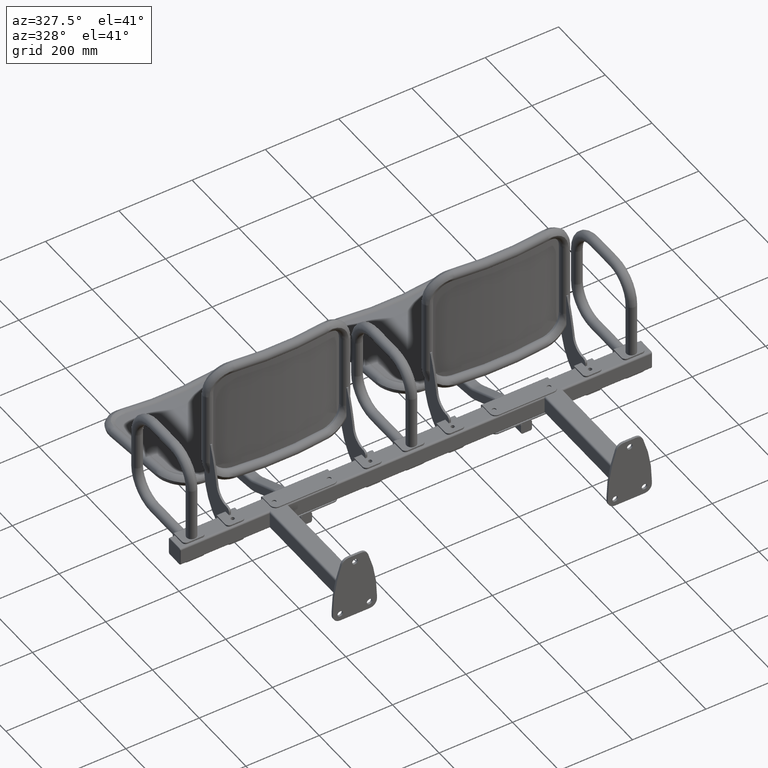
[diagram: clean part render]
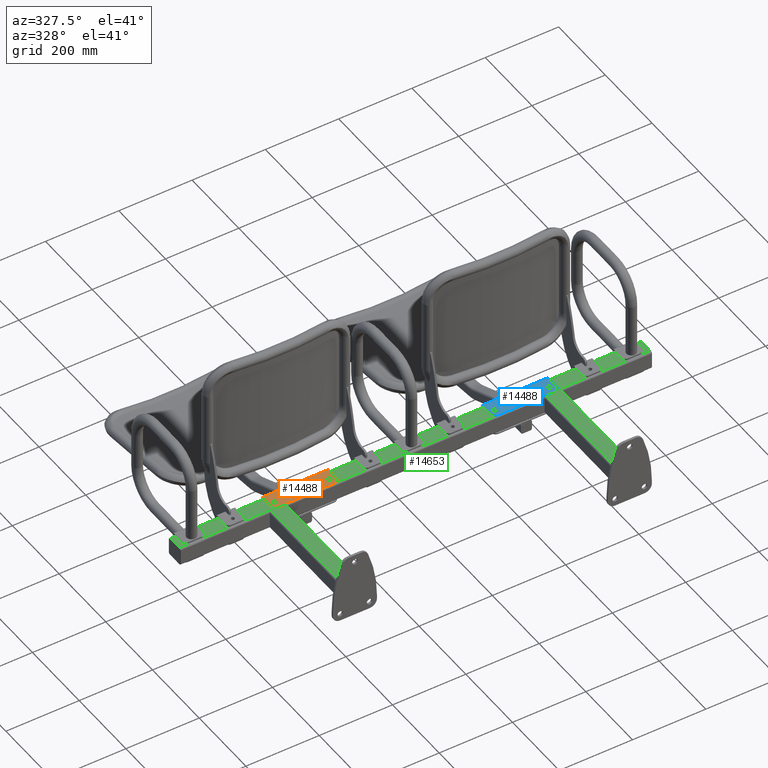
[diagram: same view with three faces highlighted in distinct colors, each labeled with its STEP entity id]
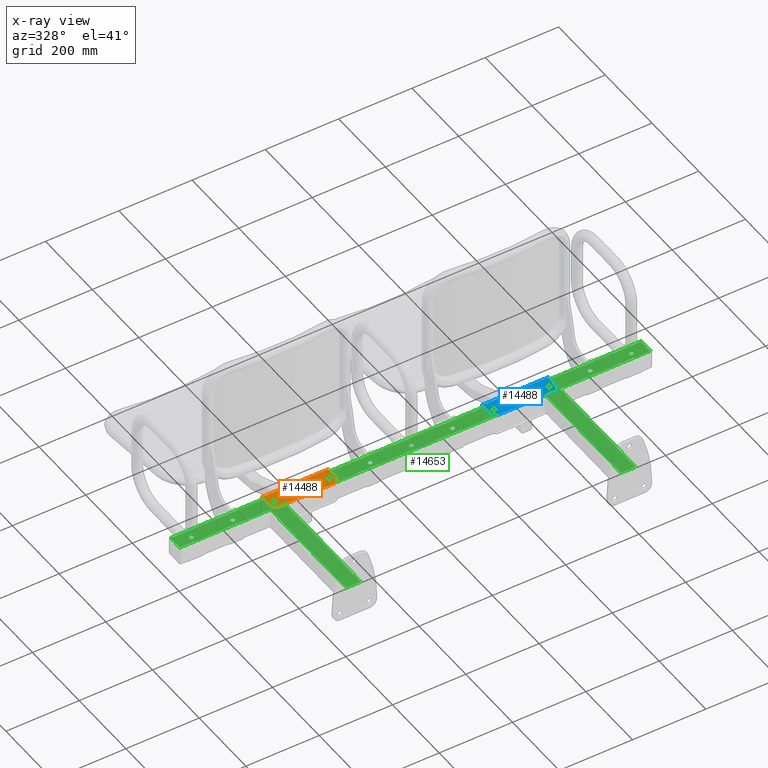
[diagram: x-ray of the same camera — body ghosted, the three highlighted faces saturated]
A machine part, auxiliary view with three faces highlighted in distinct colors.
The next image is the same camera in x-ray (body ghosted, the three faces saturated) — at least one of them is partly hidden behind the body in this view.
Their STEP definitions:

[orange] entity #14488 — the highlighted planar face has unit normal (0, 0, -1).
#105 = AXIS2_PLACEMENT_3D ( 'NONE', #3403, #3399, #3405 ) ;
#319 = CARTESIAN_POINT ( 'NONE',  ( -74.99999999999997200, 45.12622973921212800, 413.6225311186879000 ) ) ;
#1972 = ORIENTED_EDGE ( 'NONE', *, *, #16790, .T. ) ;
#1973 = ORIENTED_EDGE ( 'NONE', *, *, #16789, .F. ) ;
#1974 = ORIENTED_EDGE ( 'NONE', *, *, #16788, .T. ) ;
#1975 = ORIENTED_EDGE ( 'NONE', *, *, #16787, .F. ) ;
#1976 = ORIENTED_EDGE ( 'NONE', *, *, #16786, .T. ) ;
#1977 = ORIENTED_EDGE ( 'NONE', *, *, #16785, .T. ) ;
#1978 = ORIENTED_EDGE ( 'NONE', *, *, #16749, .F. ) ;
#1979 = ORIENTED_EDGE ( 'NONE', *, *, #16784, .F. ) ;
#1980 = ORIENTED_EDGE ( 'NONE', *, *, #16741, .F. ) ;
#1981 = ORIENTED_EDGE ( 'NONE', *, *, #16783, .F. ) ;
#2167 = VERTEX_POINT ( 'NONE', #319 ) ;
#2178 = VERTEX_POINT ( 'NONE', #8887 ) ;
#2180 = VERTEX_POINT ( 'NONE', #8889 ) ;
#2188 = VERTEX_POINT ( 'NONE', #8897 ) ;
#2269 = VERTEX_POINT ( 'NONE', #12580 ) ;
#2271 = VERTEX_POINT ( 'NONE', #12582 ) ;
#2289 = VERTEX_POINT ( 'NONE', #12600 ) ;
#3106 = AXIS2_PLACEMENT_3D ( 'NONE', #17663, #17664, #17665 ) ;
#3107 = AXIS2_PLACEMENT_3D ( 'NONE', #17667, #17668, #17669 ) ;
#3108 = AXIS2_PLACEMENT_3D ( 'NONE', #17672, #17673, #17674 ) ;
#3109 = AXIS2_PLACEMENT_3D ( 'NONE', #17677, #17678, #17679 ) ;
#3399 = DIRECTION ( 'NONE',  ( 0.0000000000000000000, -0.9925461516413218700, -0.1218693434051486100 ) ) ;
#3403 = CARTESIAN_POINT ( 'NONE',  ( 90.00000000000000000, 47.86828996582794800, 391.2902427067581900 ) ) ;
#3404 = PLANE ( 'NONE',  #105 ) ;
#3405 = DIRECTION ( 'NONE',  ( 0.0000000000000000000, 0.1218693434051486100, -0.9925461516413218700 ) ) ;
#8257 = CIRCLE ( 'NONE', #9464, 5.500000000000039100 ) ;
#8272 = CIRCLE ( 'NONE', #9470, 5.500000000000039100 ) ;
#8324 = CIRCLE ( 'NONE', #3108, 15.00000000000002000 ) ;
#8327 = CIRCLE ( 'NONE', #3106, 5.500000000000039100 ) ;
#8329 = CIRCLE ( 'NONE', #3107, 5.500000000000039100 ) ;
#8330 = LINE ( 'NONE', #17661, #8332 ) ;
#8331 = CIRCLE ( 'NONE', #3109, 15.00000000000002000 ) ;
#8332 = VECTOR ( 'NONE', #17662, 1000.000000000000100 ) ;
#8333 = LINE ( 'NONE', #17670, #8335 ) ;
#8335 = VECTOR ( 'NONE', #17666, 1000.000000000000000 ) ;
#8336 = LINE ( 'NONE', #17675, #8338 ) ;
#8337 = LINE ( 'NONE', #17680, #8340 ) ;
#8338 = VECTOR ( 'NONE', #17671, 1000.000000000000100 ) ;
#8340 = VECTOR ( 'NONE', #17681, 1000.000000000000000 ) ;
#8887 = CARTESIAN_POINT ( 'NONE',  ( 75.00000000000008500, 45.12622973921212100, 413.6225311186879600 ) ) ;
#8889 = CARTESIAN_POINT ( 'NONE',  ( -74.99999999999997200, 43.78566696175548100, 424.5405387867425000 ) ) ;
#8897 = CARTESIAN_POINT ( 'NONE',  ( 75.00000000000008500, 43.78566696175547400, 424.5405387867425600 ) ) ;
#9464 = AXIS2_PLACEMENT_3D ( 'NONE', #17562, #17563, #17564 ) ;
#9470 = AXIS2_PLACEMENT_3D ( 'NONE', #17582, #17583, #17584 ) ;
#10379 = VERTEX_POINT ( 'NONE', #12832 ) ;
#10388 = VERTEX_POINT ( 'NONE', #12841 ) ;
#10400 = VERTEX_POINT ( 'NONE', #12853 ) ;
#12480 = EDGE_LOOP ( 'NONE', ( #1977, #1976, #1975, #1974, #1973, #1972 ) ) ;
#12543 = EDGE_LOOP ( 'NONE', ( #1979, #1978 ) ) ;
#12552 = EDGE_LOOP ( 'NONE', ( #1981, #1980 ) ) ;
#12580 = CARTESIAN_POINT ( 'NONE',  ( 90.00000000000000000, 43.72473229005289900, 425.0368118625630700 ) ) ;
#12582 = CARTESIAN_POINT ( 'NONE',  ( 75.00000000000000000, 41.89669213897568100, 439.9250041371829000 ) ) ;
#12600 = CARTESIAN_POINT ( 'NONE',  ( -74.99999999999992900, 41.89669213897568100, 439.9250041371829000 ) ) ;
#12832 = CARTESIAN_POINT ( 'NONE',  ( -90.00000000000000000, 43.72473229005289900, 425.0368118625630700 ) ) ;
#12841 = CARTESIAN_POINT ( 'NONE',  ( 90.00000000000000000, 47.86828996582792700, 391.2902427067581900 ) ) ;
#12853 = CARTESIAN_POINT ( 'NONE',  ( -90.00000000000000000, 47.86828996582792700, 391.2902427067581900 ) ) ;
#13769 = FACE_OUTER_BOUND ( 'NONE', #12480, .T. ) ;
#13779 = FACE_BOUND ( 'NONE', #12552, .T. ) ;
#13781 = FACE_BOUND ( 'NONE', #12543, .T. ) ;
#14488 = ADVANCED_FACE ( 'NONE', ( #13779, #13781, #13769 ), #3404, .F. ) ;
#16741 = EDGE_CURVE ( 'NONE', #2178, #2188, #8257, .T. ) ;
#16749 = EDGE_CURVE ( 'NONE', #2167, #2180, #8272, .T. ) ;
#16783 = EDGE_CURVE ( 'NONE', #2188, #2178, #8327, .T. ) ;
#16784 = EDGE_CURVE ( 'NONE', #2180, #2167, #8329, .T. ) ;
#16785 = EDGE_CURVE ( 'NONE', #10400, #10379, #8330, .T. ) ;
#16786 = EDGE_CURVE ( 'NONE', #10379, #2289, #8324, .T. ) ;
#16787 = EDGE_CURVE ( 'NONE', #2271, #2289, #8333, .T. ) ;
#16788 = EDGE_CURVE ( 'NONE', #2271, #2269, #8331, .T. ) ;
#16789 = EDGE_CURVE ( 'NONE', #10388, #2269, #8336, .T. ) ;
#16790 = EDGE_CURVE ( 'NONE', #10388, #10400, #8337, .T. ) ;
#17562 = CARTESIAN_POINT ( 'NONE',  ( 75.00000000000008500, 44.45594835048379400, 419.0815349527152900 ) ) ;
#17563 = DIRECTION ( 'NONE',  ( -0.0000000000000000000, 0.9925461516413219800, 0.1218693434051486100 ) ) ;
#17564 = DIRECTION ( 'NONE',  ( 0.0000000000000000000, 0.1218693434051486100, -0.9925461516413219800 ) ) ;
#17582 = CARTESIAN_POINT ( 'NONE',  ( -74.99999999999997200, 44.45594835048380100, 419.0815349527152300 ) ) ;
#17583 = DIRECTION ( 'NONE',  ( 0.0000000000000000000, 0.9925461516413219800, 0.1218693434051486100 ) ) ;
#17584 = DIRECTION ( 'NONE',  ( 0.0000000000000000000, -0.1218693434051486100, 0.9925461516413219800 ) ) ;
#17661 = CARTESIAN_POINT ( 'NONE',  ( -90.00000000000000000, 47.86828996582794800, 391.2902427067581900 ) ) ;
#17662 = DIRECTION ( 'NONE',  ( 0.0000000000000000000, -0.1218693434051486100, 0.9925461516413218700 ) ) ;
#17663 = CARTESIAN_POINT ( 'NONE',  ( 75.00000000000008500, 44.45594835048379400, 419.0815349527152900 ) ) ;
#17664 = DIRECTION ( 'NONE',  ( -0.0000000000000000000, 0.9925461516413219800, 0.1218693434051486100 ) ) ;
#17665 = DIRECTION ( 'NONE',  ( 0.0000000000000000000, 0.1218693434051486100, -0.9925461516413219800 ) ) ;
#17666 = DIRECTION ( 'NONE',  ( -1.000000000000000000, -0.0000000000000000000, -0.0000000000000000000 ) ) ;
#17667 = CARTESIAN_POINT ( 'NONE',  ( -74.99999999999997200, 44.45594835048380100, 419.0815349527152300 ) ) ;
#17668 = DIRECTION ( 'NONE',  ( 0.0000000000000000000, 0.9925461516413219800, 0.1218693434051486100 ) ) ;
#17669 = DIRECTION ( 'NONE',  ( 0.0000000000000000000, -0.1218693434051486100, 0.9925461516413219800 ) ) ;
#17670 = CARTESIAN_POINT ( 'NONE',  ( 90.00000000000000000, 41.89669213897568100, 439.9250041371829000 ) ) ;
#17671 = DIRECTION ( 'NONE',  ( 0.0000000000000000000, -0.1218693434051486100, 0.9925461516413218700 ) ) ;
#17672 = CARTESIAN_POINT ( 'NONE',  ( -75.00000000000000000, 43.72473229005289900, 425.0368118625630700 ) ) ;
#17673 = DIRECTION ( 'NONE',  ( -0.0000000000000000000, 0.9925461516413218700, 0.1218693434051486100 ) ) ;
#17674 = DIRECTION ( 'NONE',  ( 0.0000000000000000000, 0.1218693434051485200, -0.9925461516413219800 ) ) ;
#17675 = CARTESIAN_POINT ( 'NONE',  ( 90.00000000000000000, 47.86828996582794800, 391.2902427067581900 ) ) ;
#17677 = CARTESIAN_POINT ( 'NONE',  ( 75.00000000000000000, 43.72473229005289900, 425.0368118625630700 ) ) ;
#17678 = DIRECTION ( 'NONE',  ( -0.0000000000000000000, 0.9925461516413218700, 0.1218693434051486100 ) ) ;
#17679 = DIRECTION ( 'NONE',  ( 0.0000000000000000000, 0.1218693434051485200, -0.9925461516413219800 ) ) ;
#17680 = CARTESIAN_POINT ( 'NONE',  ( 90.00000000000000000, 47.86828996582792700, 391.2902427067581900 ) ) ;
#17681 = DIRECTION ( 'NONE',  ( -1.000000000000000000, -0.0000000000000000000, -0.0000000000000000000 ) ) ;

[blue] entity #14488 — the highlighted planar face has unit normal (0, 0, -1).
#105 = AXIS2_PLACEMENT_3D ( 'NONE', #3403, #3399, #3405 ) ;
#319 = CARTESIAN_POINT ( 'NONE',  ( -74.99999999999997200, 45.12622973921212800, 413.6225311186879000 ) ) ;
#1972 = ORIENTED_EDGE ( 'NONE', *, *, #16790, .T. ) ;
#1973 = ORIENTED_EDGE ( 'NONE', *, *, #16789, .F. ) ;
#1974 = ORIENTED_EDGE ( 'NONE', *, *, #16788, .T. ) ;
#1975 = ORIENTED_EDGE ( 'NONE', *, *, #16787, .F. ) ;
#1976 = ORIENTED_EDGE ( 'NONE', *, *, #16786, .T. ) ;
#1977 = ORIENTED_EDGE ( 'NONE', *, *, #16785, .T. ) ;
#1978 = ORIENTED_EDGE ( 'NONE', *, *, #16749, .F. ) ;
#1979 = ORIENTED_EDGE ( 'NONE', *, *, #16784, .F. ) ;
#1980 = ORIENTED_EDGE ( 'NONE', *, *, #16741, .F. ) ;
#1981 = ORIENTED_EDGE ( 'NONE', *, *, #16783, .F. ) ;
#2167 = VERTEX_POINT ( 'NONE', #319 ) ;
#2178 = VERTEX_POINT ( 'NONE', #8887 ) ;
#2180 = VERTEX_POINT ( 'NONE', #8889 ) ;
#2188 = VERTEX_POINT ( 'NONE', #8897 ) ;
#2269 = VERTEX_POINT ( 'NONE', #12580 ) ;
#2271 = VERTEX_POINT ( 'NONE', #12582 ) ;
#2289 = VERTEX_POINT ( 'NONE', #12600 ) ;
#3106 = AXIS2_PLACEMENT_3D ( 'NONE', #17663, #17664, #17665 ) ;
#3107 = AXIS2_PLACEMENT_3D ( 'NONE', #17667, #17668, #17669 ) ;
#3108 = AXIS2_PLACEMENT_3D ( 'NONE', #17672, #17673, #17674 ) ;
#3109 = AXIS2_PLACEMENT_3D ( 'NONE', #17677, #17678, #17679 ) ;
#3399 = DIRECTION ( 'NONE',  ( 0.0000000000000000000, -0.9925461516413218700, -0.1218693434051486100 ) ) ;
#3403 = CARTESIAN_POINT ( 'NONE',  ( 90.00000000000000000, 47.86828996582794800, 391.2902427067581900 ) ) ;
#3404 = PLANE ( 'NONE',  #105 ) ;
#3405 = DIRECTION ( 'NONE',  ( 0.0000000000000000000, 0.1218693434051486100, -0.9925461516413218700 ) ) ;
#8257 = CIRCLE ( 'NONE', #9464, 5.500000000000039100 ) ;
#8272 = CIRCLE ( 'NONE', #9470, 5.500000000000039100 ) ;
#8324 = CIRCLE ( 'NONE', #3108, 15.00000000000002000 ) ;
#8327 = CIRCLE ( 'NONE', #3106, 5.500000000000039100 ) ;
#8329 = CIRCLE ( 'NONE', #3107, 5.500000000000039100 ) ;
#8330 = LINE ( 'NONE', #17661, #8332 ) ;
#8331 = CIRCLE ( 'NONE', #3109, 15.00000000000002000 ) ;
#8332 = VECTOR ( 'NONE', #17662, 1000.000000000000100 ) ;
#8333 = LINE ( 'NONE', #17670, #8335 ) ;
#8335 = VECTOR ( 'NONE', #17666, 1000.000000000000000 ) ;
#8336 = LINE ( 'NONE', #17675, #8338 ) ;
#8337 = LINE ( 'NONE', #17680, #8340 ) ;
#8338 = VECTOR ( 'NONE', #17671, 1000.000000000000100 ) ;
#8340 = VECTOR ( 'NONE', #17681, 1000.000000000000000 ) ;
#8887 = CARTESIAN_POINT ( 'NONE',  ( 75.00000000000008500, 45.12622973921212100, 413.6225311186879600 ) ) ;
#8889 = CARTESIAN_POINT ( 'NONE',  ( -74.99999999999997200, 43.78566696175548100, 424.5405387867425000 ) ) ;
#8897 = CARTESIAN_POINT ( 'NONE',  ( 75.00000000000008500, 43.78566696175547400, 424.5405387867425600 ) ) ;
#9464 = AXIS2_PLACEMENT_3D ( 'NONE', #17562, #17563, #17564 ) ;
#9470 = AXIS2_PLACEMENT_3D ( 'NONE', #17582, #17583, #17584 ) ;
#10379 = VERTEX_POINT ( 'NONE', #12832 ) ;
#10388 = VERTEX_POINT ( 'NONE', #12841 ) ;
#10400 = VERTEX_POINT ( 'NONE', #12853 ) ;
#12480 = EDGE_LOOP ( 'NONE', ( #1977, #1976, #1975, #1974, #1973, #1972 ) ) ;
#12543 = EDGE_LOOP ( 'NONE', ( #1979, #1978 ) ) ;
#12552 = EDGE_LOOP ( 'NONE', ( #1981, #1980 ) ) ;
#12580 = CARTESIAN_POINT ( 'NONE',  ( 90.00000000000000000, 43.72473229005289900, 425.0368118625630700 ) ) ;
#12582 = CARTESIAN_POINT ( 'NONE',  ( 75.00000000000000000, 41.89669213897568100, 439.9250041371829000 ) ) ;
#12600 = CARTESIAN_POINT ( 'NONE',  ( -74.99999999999992900, 41.89669213897568100, 439.9250041371829000 ) ) ;
#12832 = CARTESIAN_POINT ( 'NONE',  ( -90.00000000000000000, 43.72473229005289900, 425.0368118625630700 ) ) ;
#12841 = CARTESIAN_POINT ( 'NONE',  ( 90.00000000000000000, 47.86828996582792700, 391.2902427067581900 ) ) ;
#12853 = CARTESIAN_POINT ( 'NONE',  ( -90.00000000000000000, 47.86828996582792700, 391.2902427067581900 ) ) ;
#13769 = FACE_OUTER_BOUND ( 'NONE', #12480, .T. ) ;
#13779 = FACE_BOUND ( 'NONE', #12552, .T. ) ;
#13781 = FACE_BOUND ( 'NONE', #12543, .T. ) ;
#14488 = ADVANCED_FACE ( 'NONE', ( #13779, #13781, #13769 ), #3404, .F. ) ;
#16741 = EDGE_CURVE ( 'NONE', #2178, #2188, #8257, .T. ) ;
#16749 = EDGE_CURVE ( 'NONE', #2167, #2180, #8272, .T. ) ;
#16783 = EDGE_CURVE ( 'NONE', #2188, #2178, #8327, .T. ) ;
#16784 = EDGE_CURVE ( 'NONE', #2180, #2167, #8329, .T. ) ;
#16785 = EDGE_CURVE ( 'NONE', #10400, #10379, #8330, .T. ) ;
#16786 = EDGE_CURVE ( 'NONE', #10379, #2289, #8324, .T. ) ;
#16787 = EDGE_CURVE ( 'NONE', #2271, #2289, #8333, .T. ) ;
#16788 = EDGE_CURVE ( 'NONE', #2271, #2269, #8331, .T. ) ;
#16789 = EDGE_CURVE ( 'NONE', #10388, #2269, #8336, .T. ) ;
#16790 = EDGE_CURVE ( 'NONE', #10388, #10400, #8337, .T. ) ;
#17562 = CARTESIAN_POINT ( 'NONE',  ( 75.00000000000008500, 44.45594835048379400, 419.0815349527152900 ) ) ;
#17563 = DIRECTION ( 'NONE',  ( -0.0000000000000000000, 0.9925461516413219800, 0.1218693434051486100 ) ) ;
#17564 = DIRECTION ( 'NONE',  ( 0.0000000000000000000, 0.1218693434051486100, -0.9925461516413219800 ) ) ;
#17582 = CARTESIAN_POINT ( 'NONE',  ( -74.99999999999997200, 44.45594835048380100, 419.0815349527152300 ) ) ;
#17583 = DIRECTION ( 'NONE',  ( 0.0000000000000000000, 0.9925461516413219800, 0.1218693434051486100 ) ) ;
#17584 = DIRECTION ( 'NONE',  ( 0.0000000000000000000, -0.1218693434051486100, 0.9925461516413219800 ) ) ;
#17661 = CARTESIAN_POINT ( 'NONE',  ( -90.00000000000000000, 47.86828996582794800, 391.2902427067581900 ) ) ;
#17662 = DIRECTION ( 'NONE',  ( 0.0000000000000000000, -0.1218693434051486100, 0.9925461516413218700 ) ) ;
#17663 = CARTESIAN_POINT ( 'NONE',  ( 75.00000000000008500, 44.45594835048379400, 419.0815349527152900 ) ) ;
#17664 = DIRECTION ( 'NONE',  ( -0.0000000000000000000, 0.9925461516413219800, 0.1218693434051486100 ) ) ;
#17665 = DIRECTION ( 'NONE',  ( 0.0000000000000000000, 0.1218693434051486100, -0.9925461516413219800 ) ) ;
#17666 = DIRECTION ( 'NONE',  ( -1.000000000000000000, -0.0000000000000000000, -0.0000000000000000000 ) ) ;
#17667 = CARTESIAN_POINT ( 'NONE',  ( -74.99999999999997200, 44.45594835048380100, 419.0815349527152300 ) ) ;
#17668 = DIRECTION ( 'NONE',  ( 0.0000000000000000000, 0.9925461516413219800, 0.1218693434051486100 ) ) ;
#17669 = DIRECTION ( 'NONE',  ( 0.0000000000000000000, -0.1218693434051486100, 0.9925461516413219800 ) ) ;
#17670 = CARTESIAN_POINT ( 'NONE',  ( 90.00000000000000000, 41.89669213897568100, 439.9250041371829000 ) ) ;
#17671 = DIRECTION ( 'NONE',  ( 0.0000000000000000000, -0.1218693434051486100, 0.9925461516413218700 ) ) ;
#17672 = CARTESIAN_POINT ( 'NONE',  ( -75.00000000000000000, 43.72473229005289900, 425.0368118625630700 ) ) ;
#17673 = DIRECTION ( 'NONE',  ( -0.0000000000000000000, 0.9925461516413218700, 0.1218693434051486100 ) ) ;
#17674 = DIRECTION ( 'NONE',  ( 0.0000000000000000000, 0.1218693434051485200, -0.9925461516413219800 ) ) ;
#17675 = CARTESIAN_POINT ( 'NONE',  ( 90.00000000000000000, 47.86828996582794800, 391.2902427067581900 ) ) ;
#17677 = CARTESIAN_POINT ( 'NONE',  ( 75.00000000000000000, 43.72473229005289900, 425.0368118625630700 ) ) ;
#17678 = DIRECTION ( 'NONE',  ( -0.0000000000000000000, 0.9925461516413218700, 0.1218693434051486100 ) ) ;
#17679 = DIRECTION ( 'NONE',  ( 0.0000000000000000000, 0.1218693434051485200, -0.9925461516413219800 ) ) ;
#17680 = CARTESIAN_POINT ( 'NONE',  ( 90.00000000000000000, 47.86828996582792700, 391.2902427067581900 ) ) ;
#17681 = DIRECTION ( 'NONE',  ( -1.000000000000000000, -0.0000000000000000000, -0.0000000000000000000 ) ) ;

[green] entity #14653 — the highlighted planar face has unit normal (0, 0, -1).
#214 = VERTEX_POINT ( 'NONE', #8789 ) ;
#573 = CARTESIAN_POINT ( 'NONE',  ( 355.0000000000000000, 6.000000000000000000, 25.00000000000000000 ) ) ;
#575 = CARTESIAN_POINT ( 'NONE',  ( -354.9999999999999400, 331.0000000000000000, 25.00000000000000000 ) ) ;
#577 = CARTESIAN_POINT ( 'NONE',  ( -642.0000000000001100, 331.0000000000000000, 25.00000000000000000 ) ) ;
#585 = CARTESIAN_POINT ( 'NONE',  ( -355.0000000000000000, 6.000000000000000000, 25.00000000000000000 ) ) ;
#587 = CARTESIAN_POINT ( 'NONE',  ( -117.7500000000001600, 347.0000000000000000, 25.00000000000000000 ) ) ;
#590 = CARTESIAN_POINT ( 'NONE',  ( -395.0000000000000600, 331.0000000000000000, 25.00000000000000000 ) ) ;
#598 = CARTESIAN_POINT ( 'NONE',  ( 492.7500000000001100, 347.0000000000000000, 25.00000000000000000 ) ) ;
#599 = CARTESIAN_POINT ( 'NONE',  ( -482.2500000000001700, 347.0000000000000000, 25.00000000000000000 ) ) ;
#611 = CARTESIAN_POINT ( 'NONE',  ( 117.7500000000001600, 347.0000000000000000, 25.00000000000000000 ) ) ;
#616 = CARTESIAN_POINT ( 'NONE',  ( 642.0000000000002300, 331.0000000000000000, 25.00000000000000000 ) ) ;
#618 = CARTESIAN_POINT ( 'NONE',  ( 354.9999999999999400, 331.0000000000000000, 25.00000000000000000 ) ) ;
#622 = CARTESIAN_POINT ( 'NONE',  ( -642.0000000000001100, 371.0000000000000000, 25.00000000000000000 ) ) ;
#623 = CARTESIAN_POINT ( 'NONE',  ( 642.0000000000000000, 371.0000000000000000, 25.00000000000000000 ) ) ;
#624 = CARTESIAN_POINT ( 'NONE',  ( -395.0000000000000000, 6.000000000000000000, 25.00000000000000000 ) ) ;
#633 = CARTESIAN_POINT ( 'NONE',  ( 395.0000000000000000, 6.000000000000000000, 25.00000000000000000 ) ) ;
#635 = CARTESIAN_POINT ( 'NONE',  ( -107.2500000000001600, 347.0000000000000000, 25.00000000000000000 ) ) ;
#637 = CARTESIAN_POINT ( 'NONE',  ( 395.0000000000000600, 331.0000000000000000, 25.00000000000000000 ) ) ;
#639 = CARTESIAN_POINT ( 'NONE',  ( 482.2500000000001700, 347.0000000000000000, 25.00000000000000000 ) ) ;
#641 = CARTESIAN_POINT ( 'NONE',  ( -492.7500000000001100, 347.0000000000000000, 25.00000000000000000 ) ) ;
#3251 = EDGE_CURVE ( 'NONE', #214, #15648, #4331, .T. ) ;
#3255 = EDGE_CURVE ( 'NONE', #15490, #15496, #4340, .T. ) ;
#3351 = VERTEX_POINT ( 'NONE', #16053 ) ;
#3371 = VERTEX_POINT ( 'NONE', #12042 ) ;
#4331 = CIRCLE ( 'NONE', #5138, 5.250000000000000900 ) ;
#4340 = CIRCLE ( 'NONE', #5140, 5.249999999999976900 ) ;
#4472 = CIRCLE ( 'NONE', #5180, 5.249999999999976900 ) ;
#4480 = CIRCLE ( 'NONE', #5182, 5.250000000000004400 ) ;
#4487 = CIRCLE ( 'NONE', #5184, 5.249999999999976900 ) ;
#4493 = CIRCLE ( 'NONE', #5186, 5.250000000000004400 ) ;
#4499 = CIRCLE ( 'NONE', #5188, 5.249999999999976900 ) ;
#4702 = ORIENTED_EDGE ( 'NONE', *, *, #9510, .F. ) ;
#4703 = ORIENTED_EDGE ( 'NONE', *, *, #3251, .F. ) ;
#4704 = ORIENTED_EDGE ( 'NONE', *, *, #9509, .F. ) ;
#4705 = ORIENTED_EDGE ( 'NONE', *, *, #4718, .F. ) ;
#4706 = ORIENTED_EDGE ( 'NONE', *, *, #9508, .F. ) ;
#4707 = ORIENTED_EDGE ( 'NONE', *, *, #4726, .F. ) ;
#4708 = ORIENTED_EDGE ( 'NONE', *, *, #9507, .F. ) ;
#4709 = ORIENTED_EDGE ( 'NONE', *, *, #4734, .F. ) ;
#4710 = ORIENTED_EDGE ( 'NONE', *, *, #9506, .T. ) ;
#4711 = ORIENTED_EDGE ( 'NONE', *, *, #9505, .T. ) ;
#4712 = ORIENTED_EDGE ( 'NONE', *, *, #9504, .T. ) ;
#4713 = ORIENTED_EDGE ( 'NONE', *, *, #9503, .T. ) ;
#4714 = ORIENTED_EDGE ( 'NONE', *, *, #9502, .T. ) ;
#4718 = EDGE_CURVE ( 'NONE', #3371, #3351, #4472, .T. ) ;
#4722 = EDGE_CURVE ( 'NONE', #15652, #13236, #4480, .T. ) ;
#4726 = EDGE_CURVE ( 'NONE', #13270, #12034, #4487, .T. ) ;
#4730 = EDGE_CURVE ( 'NONE', #12023, #13266, #4493, .T. ) ;
#4734 = EDGE_CURVE ( 'NONE', #13272, #12035, #4499, .T. ) ;
#4995 = CARTESIAN_POINT ( 'NONE',  ( 600.0000000000000000, 347.0000000000000600, 25.00000000000000000 ) ) ;
#4997 = DIRECTION ( 'NONE',  ( 0.0000000000000000000, 0.0000000000000000000, 1.000000000000000000 ) ) ;
#4998 = DIRECTION ( 'NONE',  ( -1.000000000000000000, 0.0000000000000000000, 0.0000000000000000000 ) ) ;
#5138 = AXIS2_PLACEMENT_3D ( 'NONE', #14735, #14736, #14737 ) ;
#5140 = AXIS2_PLACEMENT_3D ( 'NONE', #4995, #4997, #4998 ) ;
#5180 = AXIS2_PLACEMENT_3D ( 'NONE', #12076, #12077, #12078 ) ;
#5182 = AXIS2_PLACEMENT_3D ( 'NONE', #12086, #12087, #12088 ) ;
#5184 = AXIS2_PLACEMENT_3D ( 'NONE', #12096, #12097, #12098 ) ;
#5186 = AXIS2_PLACEMENT_3D ( 'NONE', #12106, #12107, #12108 ) ;
#5188 = AXIS2_PLACEMENT_3D ( 'NONE', #12116, #12117, #12118 ) ;
#5299 = AXIS2_PLACEMENT_3D ( 'NONE', #14981, #14982, #14983 ) ;
#5300 = AXIS2_PLACEMENT_3D ( 'NONE', #14986, #14987, #14988 ) ;
#5301 = AXIS2_PLACEMENT_3D ( 'NONE', #14990, #14991, #14992 ) ;
#5302 = AXIS2_PLACEMENT_3D ( 'NONE', #5531, #5533, #5535 ) ;
#5303 = AXIS2_PLACEMENT_3D ( 'NONE', #5540, #5542, #5544 ) ;
#5304 = AXIS2_PLACEMENT_3D ( 'NONE', #5546, #5548, #5550 ) ;
#5305 = AXIS2_PLACEMENT_3D ( 'NONE', #5554, #5555, #5557 ) ;
#5509 = DIRECTION ( 'NONE',  ( 1.734723475976807100E-016, -1.000000000000000000, 0.0000000000000000000 ) ) ;
#5511 = CARTESIAN_POINT ( 'NONE',  ( 350.0000000000000000, 6.000000000000000000, 25.00000000000000000 ) ) ;
#5515 = DIRECTION ( 'NONE',  ( 1.000000000000000000, 0.0000000000000000000, 0.0000000000000000000 ) ) ;
#5518 = CARTESIAN_POINT ( 'NONE',  ( 395.0000000000000000, -6.852157730108388000E-014, 25.00000000000000000 ) ) ;
#5522 = DIRECTION ( 'NONE',  ( 1.734723475976807100E-016, 1.000000000000000000, 0.0000000000000000000 ) ) ;
#5531 = CARTESIAN_POINT ( 'NONE',  ( -487.5000000000001700, 347.0000000000000000, 25.00000000000000000 ) ) ;
#5533 = DIRECTION ( 'NONE',  ( 0.0000000000000000000, 0.0000000000000000000, 1.000000000000000000 ) ) ;
#5535 = DIRECTION ( 'NONE',  ( 1.000000000000000000, 0.0000000000000000000, 0.0000000000000000000 ) ) ;
#5540 = CARTESIAN_POINT ( 'NONE',  ( 487.5000000000001700, 347.0000000000000000, 25.00000000000000000 ) ) ;
#5542 = DIRECTION ( 'NONE',  ( 0.0000000000000000000, 0.0000000000000000000, 1.000000000000000000 ) ) ;
#5544 = DIRECTION ( 'NONE',  ( -1.000000000000000000, 0.0000000000000000000, 0.0000000000000000000 ) ) ;
#5546 = CARTESIAN_POINT ( 'NONE',  ( -600.0000000000000000, 347.0000000000000600, 25.00000000000000000 ) ) ;
#5548 = DIRECTION ( 'NONE',  ( 0.0000000000000000000, 0.0000000000000000000, 1.000000000000000000 ) ) ;
#5550 = DIRECTION ( 'NONE',  ( 1.000000000000000000, 0.0000000000000000000, 0.0000000000000000000 ) ) ;
#5554 = CARTESIAN_POINT ( 'NONE',  ( 0.0000000000000000000, 347.0000000000000600, 25.00000000000000000 ) ) ;
#5555 = DIRECTION ( 'NONE',  ( 0.0000000000000000000, 0.0000000000000000000, 1.000000000000000000 ) ) ;
#5557 = DIRECTION ( 'NONE',  ( 1.000000000000000000, 0.0000000000000000000, 0.0000000000000000000 ) ) ;
#8425 = LINE ( 'NONE', #17854, #8427 ) ;
#8427 = VECTOR ( 'NONE', #17855, 1000.000000000000000 ) ;
#8789 = CARTESIAN_POINT ( 'NONE',  ( -5.250000000000000900, 347.0000000000000600, 25.00000000000000000 ) ) ;
#9418 = AXIS2_PLACEMENT_3D ( 'NONE', #9905, #9900, #9907 ) ;
#9492 = EDGE_CURVE ( 'NONE', #15496, #15490, #13297, .T. ) ;
#9493 = EDGE_CURVE ( 'NONE', #13236, #15652, #13298, .T. ) ;
#9494 = EDGE_CURVE ( 'NONE', #13266, #12023, #13299, .T. ) ;
#9496 = EDGE_CURVE ( 'NONE', #13268, #13230, #13300, .T. ) ;
#9497 = EDGE_CURVE ( 'NONE', #13230, #13251, #13295, .T. ) ;
#9498 = EDGE_CURVE ( 'NONE', #13251, #13249, #13303, .T. ) ;
#9499 = EDGE_CURVE ( 'NONE', #13249, #12009, #13305, .T. ) ;
#9500 = EDGE_CURVE ( 'NONE', #12009, #12026, #13307, .T. ) ;
#9501 = EDGE_CURVE ( 'NONE', #12026, #13252, #13309, .T. ) ;
#9502 = EDGE_CURVE ( 'NONE', #12021, #12008, #13311, .T. ) ;
#9503 = EDGE_CURVE ( 'NONE', #12008, #13238, #13313, .T. ) ;
#9504 = EDGE_CURVE ( 'NONE', #13238, #12016, #13315, .T. ) ;
#9505 = EDGE_CURVE ( 'NONE', #12016, #13263, #13317, .T. ) ;
#9506 = EDGE_CURVE ( 'NONE', #13263, #13268, #13319, .T. ) ;
#9507 = EDGE_CURVE ( 'NONE', #12035, #13272, #13321, .T. ) ;
#9508 = EDGE_CURVE ( 'NONE', #12034, #13270, #13323, .T. ) ;
#9509 = EDGE_CURVE ( 'NONE', #3351, #3371, #13324, .T. ) ;
#9510 = EDGE_CURVE ( 'NONE', #15648, #214, #13325, .T. ) ;
#9900 = DIRECTION ( 'NONE',  ( 0.0000000000000000000, 0.0000000000000000000, -1.000000000000000000 ) ) ;
#9905 = CARTESIAN_POINT ( 'NONE',  ( 0.0000000000000000000, 0.0000000000000000000, 25.00000000000000000 ) ) ;
#9906 = PLANE ( 'NONE',  #9418 ) ;
#9907 = DIRECTION ( 'NONE',  ( -1.000000000000000000, 0.0000000000000000000, -0.0000000000000000000 ) ) ;
#11866 = EDGE_LOOP ( 'NONE', ( #4703, #4702 ) ) ;
#11871 = EDGE_LOOP ( 'NONE', ( #4705, #4704 ) ) ;
#11879 = EDGE_LOOP ( 'NONE', ( #12957, #12956 ) ) ;
#11881 = EDGE_LOOP ( 'NONE', ( #12951, #12950, #12949, #12948, #12947, #12946, #12945, #4714, #4713, #4712, #4711, #4710 ) ) ;
#11887 = EDGE_LOOP ( 'NONE', ( #12955, #12954 ) ) ;
#11888 = EDGE_LOOP ( 'NONE', ( #12953, #12952 ) ) ;
#11920 = EDGE_LOOP ( 'NONE', ( #4707, #4706 ) ) ;
#11942 = EDGE_LOOP ( 'NONE', ( #4709, #4708 ) ) ;
#12008 = VERTEX_POINT ( 'NONE', #575 ) ;
#12009 = VERTEX_POINT ( 'NONE', #577 ) ;
#12016 = VERTEX_POINT ( 'NONE', #573 ) ;
#12021 = VERTEX_POINT ( 'NONE', #585 ) ;
#12023 = VERTEX_POINT ( 'NONE', #587 ) ;
#12026 = VERTEX_POINT ( 'NONE', #590 ) ;
#12034 = VERTEX_POINT ( 'NONE', #598 ) ;
#12035 = VERTEX_POINT ( 'NONE', #599 ) ;
#12042 = CARTESIAN_POINT ( 'NONE',  ( -605.2500000000000000, 347.0000000000000600, 25.00000000000000000 ) ) ;
#12076 = CARTESIAN_POINT ( 'NONE',  ( -600.0000000000000000, 347.0000000000000600, 25.00000000000000000 ) ) ;
#12077 = DIRECTION ( 'NONE',  ( 0.0000000000000000000, 0.0000000000000000000, 1.000000000000000000 ) ) ;
#12078 = DIRECTION ( 'NONE',  ( 1.000000000000000000, 0.0000000000000000000, 0.0000000000000000000 ) ) ;
#12086 = CARTESIAN_POINT ( 'NONE',  ( 112.5000000000001600, 347.0000000000000000, 25.00000000000000000 ) ) ;
#12087 = DIRECTION ( 'NONE',  ( 0.0000000000000000000, 0.0000000000000000000, 1.000000000000000000 ) ) ;
#12088 = DIRECTION ( 'NONE',  ( -1.000000000000000000, 0.0000000000000000000, 0.0000000000000000000 ) ) ;
#12096 = CARTESIAN_POINT ( 'NONE',  ( 487.5000000000001700, 347.0000000000000000, 25.00000000000000000 ) ) ;
#12097 = DIRECTION ( 'NONE',  ( 0.0000000000000000000, 0.0000000000000000000, 1.000000000000000000 ) ) ;
#12098 = DIRECTION ( 'NONE',  ( -1.000000000000000000, 0.0000000000000000000, 0.0000000000000000000 ) ) ;
#12106 = CARTESIAN_POINT ( 'NONE',  ( -112.5000000000001600, 347.0000000000000000, 25.00000000000000000 ) ) ;
#12107 = DIRECTION ( 'NONE',  ( 0.0000000000000000000, 0.0000000000000000000, 1.000000000000000000 ) ) ;
#12108 = DIRECTION ( 'NONE',  ( 1.000000000000000000, 0.0000000000000000000, 0.0000000000000000000 ) ) ;
#12116 = CARTESIAN_POINT ( 'NONE',  ( -487.5000000000001700, 347.0000000000000000, 25.00000000000000000 ) ) ;
#12117 = DIRECTION ( 'NONE',  ( 0.0000000000000000000, 0.0000000000000000000, 1.000000000000000000 ) ) ;
#12118 = DIRECTION ( 'NONE',  ( 1.000000000000000000, 0.0000000000000000000, 0.0000000000000000000 ) ) ;
#12945 = ORIENTED_EDGE ( 'NONE', *, *, #16851, .T. ) ;
#12946 = ORIENTED_EDGE ( 'NONE', *, *, #9501, .T. ) ;
#12947 = ORIENTED_EDGE ( 'NONE', *, *, #9500, .T. ) ;
#12948 = ORIENTED_EDGE ( 'NONE', *, *, #9499, .T. ) ;
#12949 = ORIENTED_EDGE ( 'NONE', *, *, #9498, .T. ) ;
#12950 = ORIENTED_EDGE ( 'NONE', *, *, #9497, .T. ) ;
#12951 = ORIENTED_EDGE ( 'NONE', *, *, #9496, .T. ) ;
#12952 = ORIENTED_EDGE ( 'NONE', *, *, #9494, .F. ) ;
#12953 = ORIENTED_EDGE ( 'NONE', *, *, #4730, .F. ) ;
#12954 = ORIENTED_EDGE ( 'NONE', *, *, #9493, .F. ) ;
#12955 = ORIENTED_EDGE ( 'NONE', *, *, #4722, .F. ) ;
#12956 = ORIENTED_EDGE ( 'NONE', *, *, #9492, .F. ) ;
#12957 = ORIENTED_EDGE ( 'NONE', *, *, #3255, .F. ) ;
#13230 = VERTEX_POINT ( 'NONE', #616 ) ;
#13236 = VERTEX_POINT ( 'NONE', #611 ) ;
#13238 = VERTEX_POINT ( 'NONE', #618 ) ;
#13249 = VERTEX_POINT ( 'NONE', #622 ) ;
#13251 = VERTEX_POINT ( 'NONE', #623 ) ;
#13252 = VERTEX_POINT ( 'NONE', #624 ) ;
#13263 = VERTEX_POINT ( 'NONE', #633 ) ;
#13266 = VERTEX_POINT ( 'NONE', #635 ) ;
#13268 = VERTEX_POINT ( 'NONE', #637 ) ;
#13270 = VERTEX_POINT ( 'NONE', #639 ) ;
#13272 = VERTEX_POINT ( 'NONE', #641 ) ;
#13295 = LINE ( 'NONE', #14989, #13304 ) ;
#13297 = CIRCLE ( 'NONE', #5299, 5.249999999999976900 ) ;
#13298 = CIRCLE ( 'NONE', #5300, 5.250000000000004400 ) ;
#13299 = CIRCLE ( 'NONE', #5301, 5.250000000000004400 ) ;
#13300 = LINE ( 'NONE', #14984, #13302 ) ;
#13302 = VECTOR ( 'NONE', #14985, 1000.000000000000000 ) ;
#13303 = LINE ( 'NONE', #14995, #13306 ) ;
#13304 = VECTOR ( 'NONE', #14994, 1000.000000000000000 ) ;
#13305 = LINE ( 'NONE', #14997, #13308 ) ;
#13306 = VECTOR ( 'NONE', #14996, 1000.000000000000000 ) ;
#13307 = LINE ( 'NONE', #14999, #13310 ) ;
#13308 = VECTOR ( 'NONE', #14998, 1000.000000000000000 ) ;
#13309 = LINE ( 'NONE', #15001, #13312 ) ;
#13310 = VECTOR ( 'NONE', #15000, 1000.000000000000000 ) ;
#13311 = LINE ( 'NONE', #15003, #13314 ) ;
#13312 = VECTOR ( 'NONE', #15002, 1000.000000000000000 ) ;
#13313 = LINE ( 'NONE', #15005, #13316 ) ;
#13314 = VECTOR ( 'NONE', #15004, 1000.000000000000000 ) ;
#13315 = LINE ( 'NONE', #15007, #13318 ) ;
#13316 = VECTOR ( 'NONE', #15006, 1000.000000000000000 ) ;
#13317 = LINE ( 'NONE', #5511, #13320 ) ;
#13318 = VECTOR ( 'NONE', #5509, 1000.000000000000000 ) ;
#13319 = LINE ( 'NONE', #5518, #13322 ) ;
#13320 = VECTOR ( 'NONE', #5515, 1000.000000000000000 ) ;
#13321 = CIRCLE ( 'NONE', #5302, 5.249999999999976900 ) ;
#13322 = VECTOR ( 'NONE', #5522, 1000.000000000000000 ) ;
#13323 = CIRCLE ( 'NONE', #5303, 5.249999999999976900 ) ;
#13324 = CIRCLE ( 'NONE', #5304, 5.249999999999976900 ) ;
#13325 = CIRCLE ( 'NONE', #5305, 5.250000000000000900 ) ;
#14653 = ADVANCED_FACE ( 'NONE', ( #16983, #16987, #16984, #16986, #16985, #16988, #16989, #16990 ), #9906, .F. ) ;
#14735 = CARTESIAN_POINT ( 'NONE',  ( 0.0000000000000000000, 347.0000000000000600, 25.00000000000000000 ) ) ;
#14736 = DIRECTION ( 'NONE',  ( 0.0000000000000000000, 0.0000000000000000000, 1.000000000000000000 ) ) ;
#14737 = DIRECTION ( 'NONE',  ( 1.000000000000000000, 0.0000000000000000000, 0.0000000000000000000 ) ) ;
#14981 = CARTESIAN_POINT ( 'NONE',  ( 600.0000000000000000, 347.0000000000000600, 25.00000000000000000 ) ) ;
#14982 = DIRECTION ( 'NONE',  ( 0.0000000000000000000, 0.0000000000000000000, 1.000000000000000000 ) ) ;
#14983 = DIRECTION ( 'NONE',  ( -1.000000000000000000, 0.0000000000000000000, 0.0000000000000000000 ) ) ;
#14984 = CARTESIAN_POINT ( 'NONE',  ( 0.0000000000000000000, 331.0000000000000000, 25.00000000000000000 ) ) ;
#14985 = DIRECTION ( 'NONE',  ( 1.000000000000000000, 0.0000000000000000000, 0.0000000000000000000 ) ) ;
#14986 = CARTESIAN_POINT ( 'NONE',  ( 112.5000000000001600, 347.0000000000000000, 25.00000000000000000 ) ) ;
#14987 = DIRECTION ( 'NONE',  ( 0.0000000000000000000, 0.0000000000000000000, 1.000000000000000000 ) ) ;
#14988 = DIRECTION ( 'NONE',  ( -1.000000000000000000, 0.0000000000000000000, 0.0000000000000000000 ) ) ;
#14989 = CARTESIAN_POINT ( 'NONE',  ( 642.0000000000009100, 1.425526363618703400E-012, 25.00000000000000000 ) ) ;
#14990 = CARTESIAN_POINT ( 'NONE',  ( -112.5000000000001600, 347.0000000000000000, 25.00000000000000000 ) ) ;
#14991 = DIRECTION ( 'NONE',  ( 0.0000000000000000000, 0.0000000000000000000, 1.000000000000000000 ) ) ;
#14992 = DIRECTION ( 'NONE',  ( 1.000000000000000000, 0.0000000000000000000, 0.0000000000000000000 ) ) ;
#14994 = DIRECTION ( 'NONE',  ( -2.220446049250313500E-015, 1.000000000000000000, 0.0000000000000000000 ) ) ;
#14995 = CARTESIAN_POINT ( 'NONE',  ( 0.0000000000000000000, 371.0000000000000000, 25.00000000000000000 ) ) ;
#14996 = DIRECTION ( 'NONE',  ( -1.000000000000000000, 0.0000000000000000000, 0.0000000000000000000 ) ) ;
#14997 = CARTESIAN_POINT ( 'NONE',  ( -642.0000000000001100, 0.0000000000000000000, 25.00000000000000000 ) ) ;
#14998 = DIRECTION ( 'NONE',  ( 0.0000000000000000000, -1.000000000000000000, 0.0000000000000000000 ) ) ;
#14999 = CARTESIAN_POINT ( 'NONE',  ( 0.0000000000000000000, 331.0000000000000000, 25.00000000000000000 ) ) ;
#15000 = DIRECTION ( 'NONE',  ( 1.000000000000000000, 0.0000000000000000000, 0.0000000000000000000 ) ) ;
#15001 = CARTESIAN_POINT ( 'NONE',  ( -395.0000000000000000, -6.852157730108388000E-014, 25.00000000000000000 ) ) ;
#15002 = DIRECTION ( 'NONE',  ( 1.734723475976807100E-016, -1.000000000000000000, 0.0000000000000000000 ) ) ;
#15003 = CARTESIAN_POINT ( 'NONE',  ( -355.0000000000000000, 6.158268339717665200E-014, 25.00000000000000000 ) ) ;
#15004 = DIRECTION ( 'NONE',  ( 1.734723475976807100E-016, 1.000000000000000000, 0.0000000000000000000 ) ) ;
#15005 = CARTESIAN_POINT ( 'NONE',  ( 0.0000000000000000000, 331.0000000000000000, 25.00000000000000000 ) ) ;
#15006 = DIRECTION ( 'NONE',  ( 1.000000000000000000, 0.0000000000000000000, 0.0000000000000000000 ) ) ;
#15007 = CARTESIAN_POINT ( 'NONE',  ( 355.0000000000000000, 6.158268339717665200E-014, 25.00000000000000000 ) ) ;
#15490 = VERTEX_POINT ( 'NONE', #17482 ) ;
#15496 = VERTEX_POINT ( 'NONE', #17484 ) ;
#15648 = VERTEX_POINT ( 'NONE', #17498 ) ;
#15652 = VERTEX_POINT ( 'NONE', #17501 ) ;
#16053 = CARTESIAN_POINT ( 'NONE',  ( -594.7500000000000000, 347.0000000000000600, 25.00000000000000000 ) ) ;
#16851 = EDGE_CURVE ( 'NONE', #13252, #12021, #8425, .T. ) ;
#16983 = FACE_BOUND ( 'NONE', #11879, .T. ) ;
#16984 = FACE_BOUND ( 'NONE', #11888, .T. ) ;
#16985 = FACE_BOUND ( 'NONE', #11942, .T. ) ;
#16986 = FACE_OUTER_BOUND ( 'NONE', #11881, .T. ) ;
#16987 = FACE_BOUND ( 'NONE', #11887, .T. ) ;
#16988 = FACE_BOUND ( 'NONE', #11920, .T. ) ;
#16989 = FACE_BOUND ( 'NONE', #11871, .T. ) ;
#16990 = FACE_BOUND ( 'NONE', #11866, .T. ) ;
#17482 = CARTESIAN_POINT ( 'NONE',  ( 594.7500000000000000, 347.0000000000000600, 25.00000000000000000 ) ) ;
#17484 = CARTESIAN_POINT ( 'NONE',  ( 605.2500000000000000, 347.0000000000000600, 25.00000000000000000 ) ) ;
#17498 = CARTESIAN_POINT ( 'NONE',  ( 5.250000000000000900, 347.0000000000000600, 25.00000000000000000 ) ) ;
#17501 = CARTESIAN_POINT ( 'NONE',  ( 107.2500000000001600, 347.0000000000000000, 25.00000000000000000 ) ) ;
#17854 = CARTESIAN_POINT ( 'NONE',  ( -400.0000000000000000, 6.000000000000000000, 25.00000000000000000 ) ) ;
#17855 = DIRECTION ( 'NONE',  ( 1.000000000000000000, 0.0000000000000000000, 0.0000000000000000000 ) ) ;